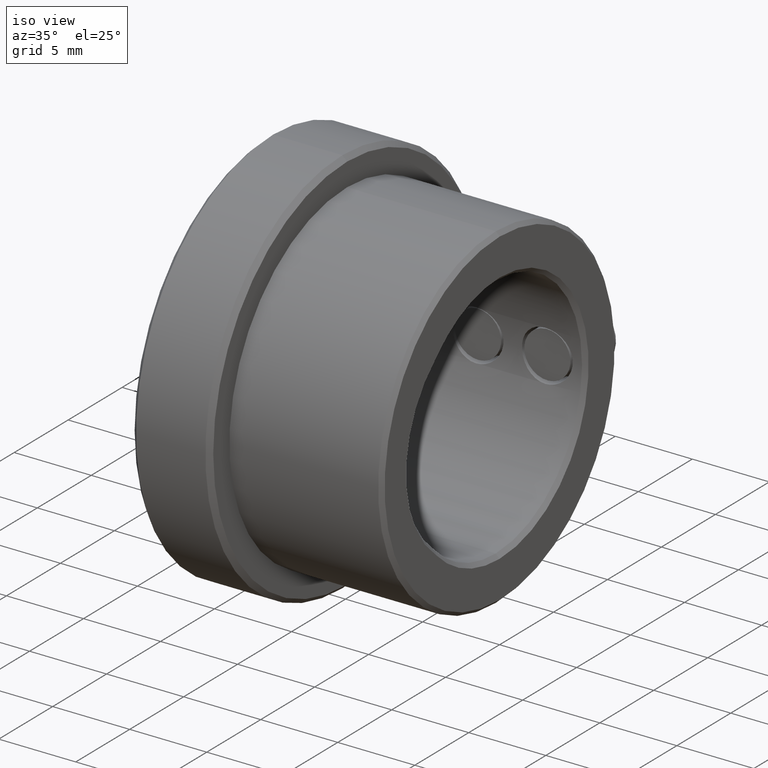
[diagram: clean part render]
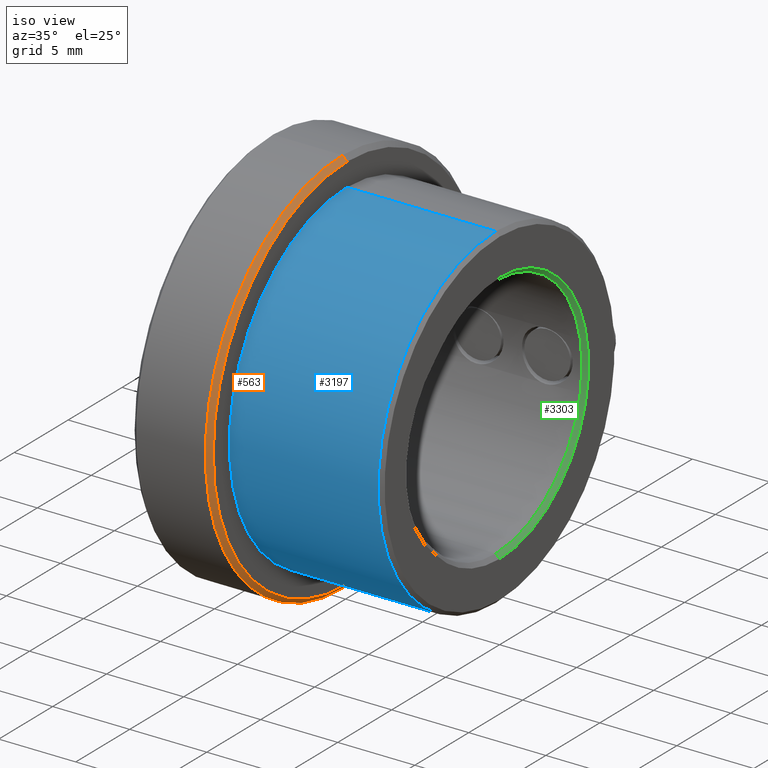
[diagram: same view with three faces highlighted in distinct colors, each labeled with its STEP entity id]
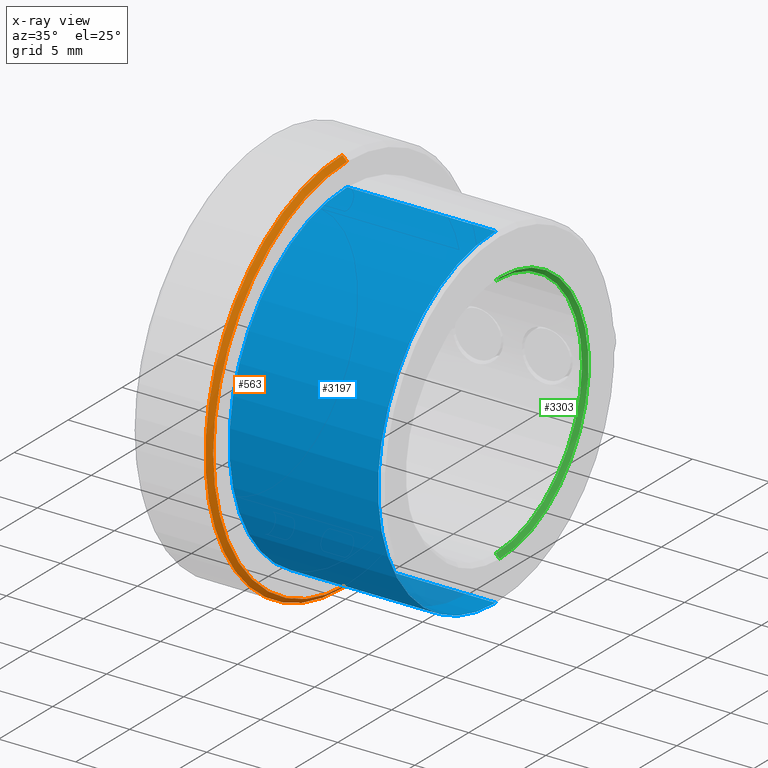
[diagram: x-ray of the same camera — body ghosted, the three highlighted faces saturated]
A machine part, iso view with three faces highlighted in distinct colors.
The next image is the same camera in x-ray (body ghosted, the three faces saturated) — at least one of them is partly hidden behind the body in this view.
Their STEP definitions:

[orange] entity #563 — the highlighted conical surface has half-angle 45 deg.
#86 = EDGE_LOOP ( 'NONE', ( #2484, #3854, #1100, #904 ) ) ;
#232 = EDGE_CURVE ( 'NONE', #886, #4408, #2781, .T. ) ;
#535 = EDGE_CURVE ( 'NONE', #886, #2327, #3668, .T. ) ;
#563 = ADVANCED_FACE ( 'NONE', ( #3764 ), #1502, .T. ) ;
#592 = DIRECTION ( 'NONE',  ( 1.000000000000000000, 0.000000000000000000, 0.000000000000000000 ) ) ;
#765 = VERTEX_POINT ( 'NONE', #3881 ) ;
#867 = CARTESIAN_POINT ( 'NONE',  ( 4.800000000000002487, 0.000000000000000000, 0.000000000000000000 ) ) ;
#886 = VERTEX_POINT ( 'NONE', #3906 ) ;
#904 = ORIENTED_EDGE ( 'NONE', *, *, #1644, .F. ) ;
#1100 = ORIENTED_EDGE ( 'NONE', *, *, #535, .T. ) ;
#1115 = CARTESIAN_POINT ( 'NONE',  ( 5.100000000000000533, 0.000000000000000000, 12.40000000000000391 ) ) ;
#1304 = CARTESIAN_POINT ( 'NONE',  ( 5.099999999999999645, 1.536931732929928397E-15, -12.40000000000000391 ) ) ;
#1468 = DIRECTION ( 'NONE',  ( -0.7071067811865495711, 8.659560562354909439E-17, -0.7071067811865455743 ) ) ;
#1502 = CONICAL_SURFACE ( 'NONE', #2299, 12.40000000000000391, 0.7853981633974456145 ) ;
#1624 = LINE ( 'NONE', #4469, #2304 ) ;
#1644 = EDGE_CURVE ( 'NONE', #765, #2327, #1908, .T. ) ;
#1668 = VECTOR ( 'NONE', #2182, 1000.000000000000114 ) ;
#1736 = EDGE_CURVE ( 'NONE', #4408, #765, #1624, .T. ) ;
#1908 = CIRCLE ( 'NONE', #2544, 12.69999999999999929 ) ;
#2008 = DIRECTION ( 'NONE',  ( 0.000000000000000000, 0.000000000000000000, -1.000000000000000000 ) ) ;
#2032 = DIRECTION ( 'NONE',  ( -1.000000000000000000, 0.000000000000000000, 0.000000000000000000 ) ) ;
#2120 = CARTESIAN_POINT ( 'NONE',  ( 5.099999999999999645, 0.000000000000000000, 0.000000000000000000 ) ) ;
#2182 = DIRECTION ( 'NONE',  ( -0.7071067811865495711, 0.000000000000000000, 0.7071067811865455743 ) ) ;
#2235 = DIRECTION ( 'NONE',  ( 0.000000000000000000, 0.000000000000000000, 1.000000000000000000 ) ) ;
#2299 = AXIS2_PLACEMENT_3D ( 'NONE', #4799, #2609, #2235 ) ;
#2304 = VECTOR ( 'NONE', #1468, 1000.000000000000114 ) ;
#2327 = VERTEX_POINT ( 'NONE', #3898 ) ;
#2484 = ORIENTED_EDGE ( 'NONE', *, *, #1736, .F. ) ;
#2544 = AXIS2_PLACEMENT_3D ( 'NONE', #867, #2032, #2008 ) ;
#2609 = DIRECTION ( 'NONE',  ( -1.000000000000000000, 0.000000000000000000, 0.000000000000000000 ) ) ;
#2781 = CIRCLE ( 'NONE', #3707, 12.40000000000000391 ) ;
#3668 = LINE ( 'NONE', #1115, #1668 ) ;
#3707 = AXIS2_PLACEMENT_3D ( 'NONE', #2120, #592, #4753 ) ;
#3764 = FACE_OUTER_BOUND ( 'NONE', #86, .T. ) ;
#3854 = ORIENTED_EDGE ( 'NONE', *, *, #232, .F. ) ;
#3881 = CARTESIAN_POINT ( 'NONE',  ( 4.800000000000002487, 1.555301434917138433E-15, -12.69999999999999929 ) ) ;
#3898 = CARTESIAN_POINT ( 'NONE',  ( 4.800000000000002487, 0.000000000000000000, 12.69999999999999929 ) ) ;
#3906 = CARTESIAN_POINT ( 'NONE',  ( 5.099999999999999645, 0.000000000000000000, 12.40000000000000391 ) ) ;
#4408 = VERTEX_POINT ( 'NONE', #1304 ) ;
#4469 = CARTESIAN_POINT ( 'NONE',  ( 5.100000000000000533, 1.518562030942718361E-15, -12.40000000000000391 ) ) ;
#4753 = DIRECTION ( 'NONE',  ( 0.000000000000000000, 0.000000000000000000, -1.000000000000000000 ) ) ;
#4799 = CARTESIAN_POINT ( 'NONE',  ( 5.100000000000000533, 0.000000000000000000, 0.000000000000000000 ) ) ;

[blue] entity #3197 — the highlighted cylindrical surface (partial cylindrical patch) has radius 10.9 mm, axis along (1, 0, 0).
#118 = ORIENTED_EDGE ( 'NONE', *, *, #2839, .T. ) ;
#279 = AXIS2_PLACEMENT_3D ( 'NONE', #3298, #2540, #699 ) ;
#601 = VECTOR ( 'NONE', #4191, 1000.000000000000000 ) ;
#638 = ORIENTED_EDGE ( 'NONE', *, *, #3342, .F. ) ;
#663 = ORIENTED_EDGE ( 'NONE', *, *, #4210, .T. ) ;
#699 = DIRECTION ( 'NONE',  ( 0.000000000000000000, 0.000000000000000000, -1.000000000000000000 ) ) ;
#1092 = DIRECTION ( 'NONE',  ( 0.000000000000000000, 0.000000000000000000, -1.000000000000000000 ) ) ;
#1123 = LINE ( 'NONE', #2595, #601 ) ;
#1208 = CIRCLE ( 'NONE', #279, 10.90000000000000036 ) ;
#1271 = VERTEX_POINT ( 'NONE', #3731 ) ;
#1451 = CARTESIAN_POINT ( 'NONE',  ( 5.100000000000000533, 0.000000000000000000, -10.90000000000000036 ) ) ;
#1469 = CARTESIAN_POINT ( 'NONE',  ( -36.28023472911937830, 0.000000000000000000, -10.90000000000000036 ) ) ;
#1536 = EDGE_LOOP ( 'NONE', ( #3332, #638, #118, #663 ) ) ;
#1724 = VERTEX_POINT ( 'NONE', #1956 ) ;
#1838 = DIRECTION ( 'NONE',  ( 1.000000000000000000, -0.000000000000000000, -0.000000000000000000 ) ) ;
#1914 = AXIS2_PLACEMENT_3D ( 'NONE', #2564, #1838, #1092 ) ;
#1956 = CARTESIAN_POINT ( 'NONE',  ( 14.74999999999999289, 0.000000000000000000, -10.90000000000000036 ) ) ;
#2284 = DIRECTION ( 'NONE',  ( 0.000000000000000000, 0.000000000000000000, -1.000000000000000000 ) ) ;
#2347 = FACE_OUTER_BOUND ( 'NONE', #1536, .T. ) ;
#2364 = DIRECTION ( 'NONE',  ( -1.000000000000000000, 0.000000000000000000, 0.000000000000000000 ) ) ;
#2400 = CYLINDRICAL_SURFACE ( 'NONE', #1914, 10.90000000000000036 ) ;
#2478 = AXIS2_PLACEMENT_3D ( 'NONE', #3112, #2364, #2284 ) ;
#2540 = DIRECTION ( 'NONE',  ( -1.000000000000000000, -0.000000000000000000, -0.000000000000000000 ) ) ;
#2564 = CARTESIAN_POINT ( 'NONE',  ( -36.28023472911937830, 0.000000000000000000, 0.000000000000000000 ) ) ;
#2595 = CARTESIAN_POINT ( 'NONE',  ( -36.28023472911937830, 1.334865011070615048E-15, 10.90000000000000036 ) ) ;
#2716 = EDGE_CURVE ( 'NONE', #4502, #1271, #1123, .T. ) ;
#2737 = VERTEX_POINT ( 'NONE', #1451 ) ;
#2839 = EDGE_CURVE ( 'NONE', #2737, #1724, #3671, .T. ) ;
#3112 = CARTESIAN_POINT ( 'NONE',  ( 14.74999999999999289, 0.000000000000000000, 0.000000000000000000 ) ) ;
#3197 = ADVANCED_FACE ( 'NONE', ( #2347 ), #2400, .T. ) ;
#3298 = CARTESIAN_POINT ( 'NONE',  ( 5.100000000000000533, 0.000000000000000000, 0.000000000000000000 ) ) ;
#3332 = ORIENTED_EDGE ( 'NONE', *, *, #2716, .F. ) ;
#3342 = EDGE_CURVE ( 'NONE', #2737, #4502, #1208, .T. ) ;
#3575 = CARTESIAN_POINT ( 'NONE',  ( 5.100000000000000533, 1.334865011070615048E-15, 10.90000000000000036 ) ) ;
#3671 = LINE ( 'NONE', #1469, #3805 ) ;
#3731 = CARTESIAN_POINT ( 'NONE',  ( 14.74999999999999289, 1.334865011070615048E-15, 10.90000000000000036 ) ) ;
#3805 = VECTOR ( 'NONE', #4449, 1000.000000000000000 ) ;
#4191 = DIRECTION ( 'NONE',  ( 1.000000000000000000, -0.000000000000000000, -0.000000000000000000 ) ) ;
#4210 = EDGE_CURVE ( 'NONE', #1724, #1271, #4581, .T. ) ;
#4449 = DIRECTION ( 'NONE',  ( 1.000000000000000000, -0.000000000000000000, -0.000000000000000000 ) ) ;
#4502 = VERTEX_POINT ( 'NONE', #3575 ) ;
#4581 = CIRCLE ( 'NONE', #2478, 10.90000000000000036 ) ;

[green] entity #3303 — the highlighted conical surface has half-angle 45 deg.
#41 = CIRCLE ( 'NONE', #2619, 8.250000000000000000 ) ;
#115 = LINE ( 'NONE', #1246, #825 ) ;
#122 = CARTESIAN_POINT ( 'NONE',  ( 15.00000000000000000, 1.010333609296566550E-15, 8.250000000000000000 ) ) ;
#161 = DIRECTION ( 'NONE',  ( 0.7071067811865524577, 0.000000000000000000, -0.7071067811865426878 ) ) ;
#230 = EDGE_LOOP ( 'NONE', ( #4265, #1816, #4740, #375 ) ) ;
#375 = ORIENTED_EDGE ( 'NONE', *, *, #3520, .F. ) ;
#825 = VECTOR ( 'NONE', #161, 1000.000000000000000 ) ;
#878 = CARTESIAN_POINT ( 'NONE',  ( 15.00000000000000000, 1.010333609296566550E-15, 8.250000000000000000 ) ) ;
#941 = VERTEX_POINT ( 'NONE', #122 ) ;
#1044 = CARTESIAN_POINT ( 'NONE',  ( 15.00000000000000000, 0.000000000000000000, 0.000000000000000000 ) ) ;
#1071 = DIRECTION ( 'NONE',  ( 0.000000000000000000, 0.000000000000000000, -1.000000000000000000 ) ) ;
#1176 = CARTESIAN_POINT ( 'NONE',  ( 14.74999999999999645, 9.797174393178825657E-16, -8.000000000000000000 ) ) ;
#1246 = CARTESIAN_POINT ( 'NONE',  ( 15.00000000000000000, 0.000000000000000000, -8.250000000000000000 ) ) ;
#1357 = AXIS2_PLACEMENT_3D ( 'NONE', #2482, #1749, #1796 ) ;
#1385 = VERTEX_POINT ( 'NONE', #4505 ) ;
#1729 = EDGE_CURVE ( 'NONE', #3610, #1960, #115, .T. ) ;
#1749 = DIRECTION ( 'NONE',  ( 1.000000000000000000, -0.000000000000000000, -0.000000000000000000 ) ) ;
#1796 = DIRECTION ( 'NONE',  ( 0.000000000000000000, 0.000000000000000000, -1.000000000000000000 ) ) ;
#1816 = ORIENTED_EDGE ( 'NONE', *, *, #2473, .F. ) ;
#1960 = VERTEX_POINT ( 'NONE', #3791 ) ;
#1978 = EDGE_CURVE ( 'NONE', #1385, #941, #4233, .T. ) ;
#2296 = AXIS2_PLACEMENT_3D ( 'NONE', #1044, #4052, #1071 ) ;
#2366 = DIRECTION ( 'NONE',  ( 0.7071067811865524577, 8.659560562354874926E-17, 0.7071067811865426878 ) ) ;
#2388 = CONICAL_SURFACE ( 'NONE', #2296, 8.250000000000000000, 0.7853981633974415066 ) ;
#2473 = EDGE_CURVE ( 'NONE', #3610, #1385, #4345, .T. ) ;
#2482 = CARTESIAN_POINT ( 'NONE',  ( 14.74999999999999645, 0.000000000000000000, 0.000000000000000000 ) ) ;
#2619 = AXIS2_PLACEMENT_3D ( 'NONE', #2654, #3026, #3391 ) ;
#2654 = CARTESIAN_POINT ( 'NONE',  ( 15.00000000000000000, 0.000000000000000000, 0.000000000000000000 ) ) ;
#2933 = FACE_OUTER_BOUND ( 'NONE', #230, .T. ) ;
#3020 = VECTOR ( 'NONE', #2366, 1000.000000000000000 ) ;
#3026 = DIRECTION ( 'NONE',  ( -1.000000000000000000, -0.000000000000000000, -0.000000000000000000 ) ) ;
#3303 = ADVANCED_FACE ( 'NONE', ( #2933 ), #2388, .F. ) ;
#3391 = DIRECTION ( 'NONE',  ( 0.000000000000000000, 0.000000000000000000, -1.000000000000000000 ) ) ;
#3520 = EDGE_CURVE ( 'NONE', #941, #1960, #41, .T. ) ;
#3610 = VERTEX_POINT ( 'NONE', #1176 ) ;
#3791 = CARTESIAN_POINT ( 'NONE',  ( 15.00000000000000000, 0.000000000000000000, -8.250000000000000000 ) ) ;
#4052 = DIRECTION ( 'NONE',  ( 1.000000000000000000, -0.000000000000000000, -0.000000000000000000 ) ) ;
#4233 = LINE ( 'NONE', #878, #3020 ) ;
#4265 = ORIENTED_EDGE ( 'NONE', *, *, #1978, .F. ) ;
#4345 = CIRCLE ( 'NONE', #1357, 8.000000000000000000 ) ;
#4505 = CARTESIAN_POINT ( 'NONE',  ( 14.74999999999999645, 0.000000000000000000, 8.000000000000000000 ) ) ;
#4740 = ORIENTED_EDGE ( 'NONE', *, *, #1729, .T. ) ;